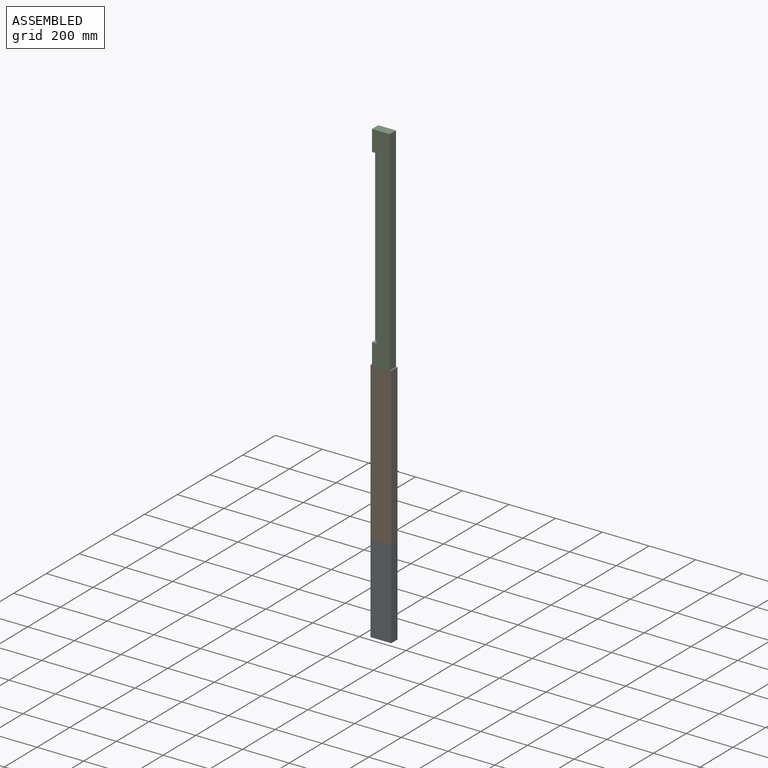
[diagram: assembled view]
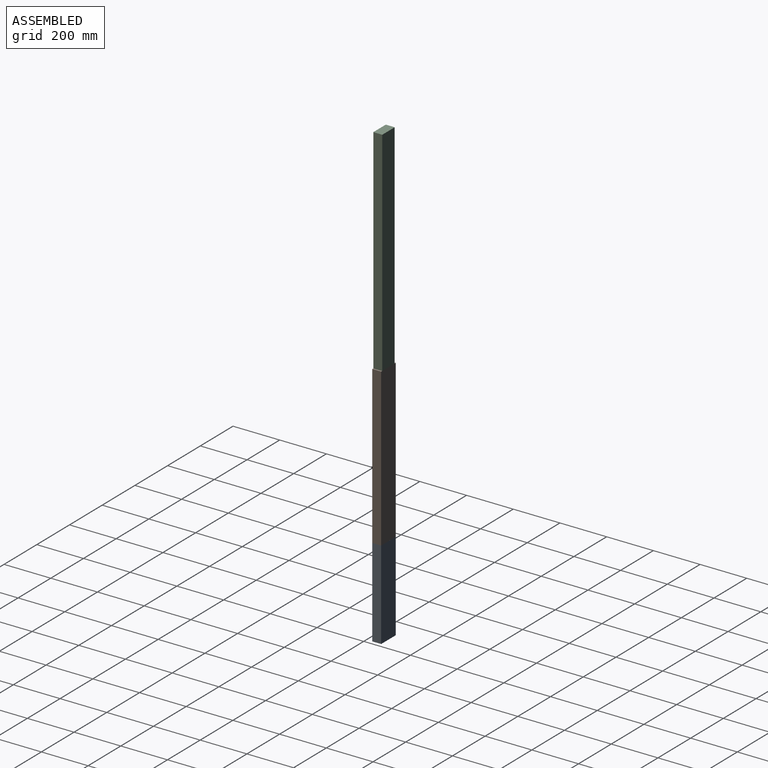
[diagram: assembled view, second angle]
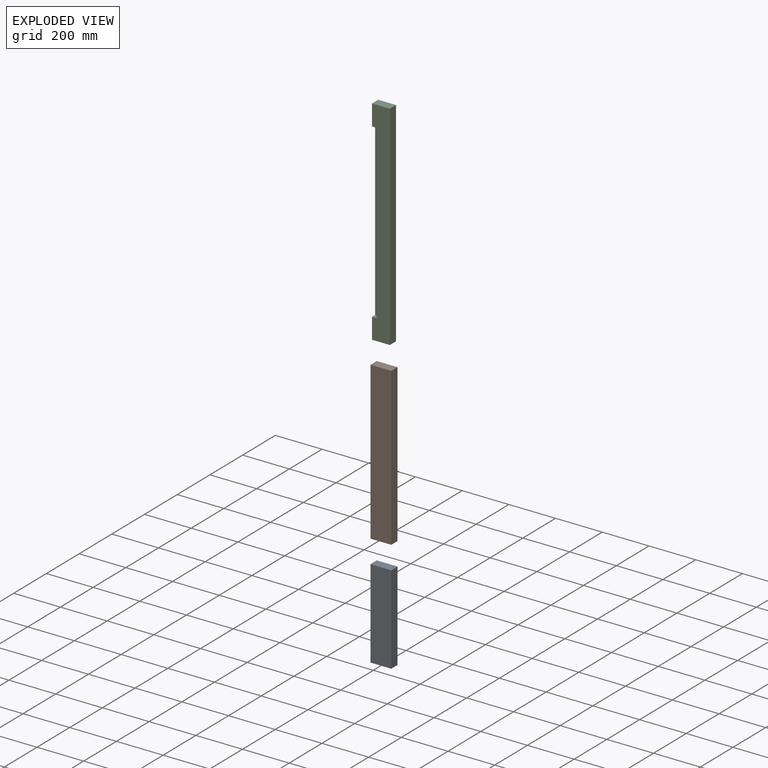
[diagram: exploded view]
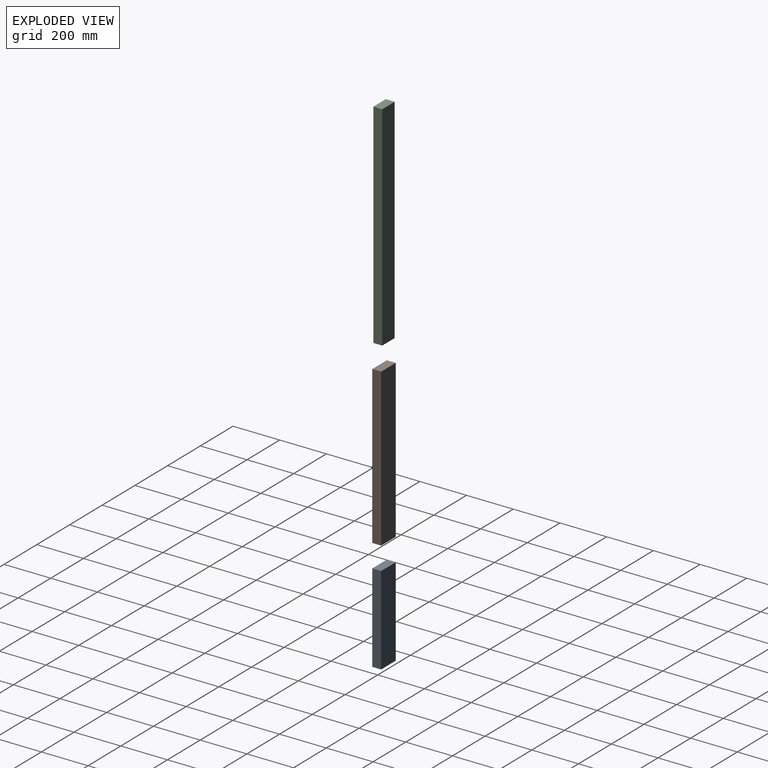
[diagram: exploded view, second angle]
ASSEMBLY  parts=3 mates=2
PART A: 6 faces, bbox 38.1x88.9x381 mm
  f0: plane 381x38.1mm, normal (0,1,0), area 14516.1mm2, adj f1,f2,f4,f5
  f1: plane 381x88.9mm, normal (1,0,0), area 33870.9mm2, adj f0,f3,f4,f5
  f2: plane 381x88.9mm, normal (-1,0,0), area 33870.9mm2, adj f0,f3,f4,f5
  f3: plane 381x38.1mm, normal (0,-1,0), area 14516.1mm2, adj f1,f2,f4,f5
  f4: plane 88.9x38.1mm, normal (0,0,1), area 3387.1mm2, adj f0,f1,f2,f3
  f5: plane 88.9x38.1mm, normal (0,0,-1), area 3387.1mm2, adj f0,f1,f2,f3
PART B: 6 faces, bbox 38.1x88.9x673.1 mm
  f0: plane 673.1x38.1mm, normal (0,-1,0), area 25645.1mm2, adj f1,f3,f4,f5
  f1: plane 673.1x88.9mm, normal (1,0,0), area 59838.6mm2, adj f0,f2,f4,f5
  f2: plane 673.1x38.1mm, normal (0,1,0), area 25645.1mm2, adj f1,f3,f4,f5
  f3: plane 673.1x88.9mm, normal (-1,0,0), area 59838.6mm2, adj f0,f2,f4,f5
  f4: plane 88.9x38.1mm, normal (0,0,-1), area 3387.1mm2, adj f0,f1,f2,f3
  f5: plane 88.9x38.1mm, normal (0,0,1), area 3387.1mm2, adj f0,f1,f2,f3
PART C: 10 faces, bbox 76.2x914.4x38.1 mm
  f0: plane 914.4x38.1mm, normal (1,0,0), area 20806.4mm2, adj f1,f2,f4,f5,f6,f7,f9
  f1: plane 914.4x76.2mm, normal (0,0,-1), area 55645.1mm2, adj f0,f2,f3,f4,f6,f7,f8
  f2: plane 76.2x38.1mm, normal (0,1,0), area 2903.2mm2, adj f0,f1,f3,f5
  f3: plane 914.4x38.1mm, normal (-1,0,0), area 34838.6mm2, adj f1,f2,f4,f5
  f4: plane 76.2x38.1mm, normal (0,-1,0), area 2903.2mm2, adj f0,f1,f3,f5
  f5: plane 914.4x76.2mm, normal (0,0,1), area 69677.3mm2, adj f0,f2,f3,f4
  f6: plane 19.05x19.05mm, normal (0,-1,0), area 362.9mm2, adj f0,f1,f8,f9
  f7: plane 19.05x19.05mm, normal (0,1,0), area 362.9mm2, adj f0,f1,f8,f9
  f8: plane 736.6x19.05mm, normal (1,0,0), area 14032.2mm2, adj f1,f6,f7,f9
  f9: plane 736.6x19.05mm, normal (0,0,-1), area 14032.2mm2, adj f0,f6,f7,f8
PLACE A rot(axis=(0.71,0.71,0),180deg) t=(-206.82,-66.65,4.47)mm
PLACE B rot(axis=(0,0,-1),90deg) t=(-206.82,-2428.85,17.17)mm
PLACE C rot(axis=(0,0.71,0.71),180deg) t=(-975.17,-1768.45,995.07)mm
MATE fastened B.f4 <-> A.f5  axis (0,0,-1) through (205.93,-1228.7,-135.23)mm
MATE fastened C.f4 <-> B.f5  axis (0,0,-1) through (205.93,-1228.7,537.87)mm
